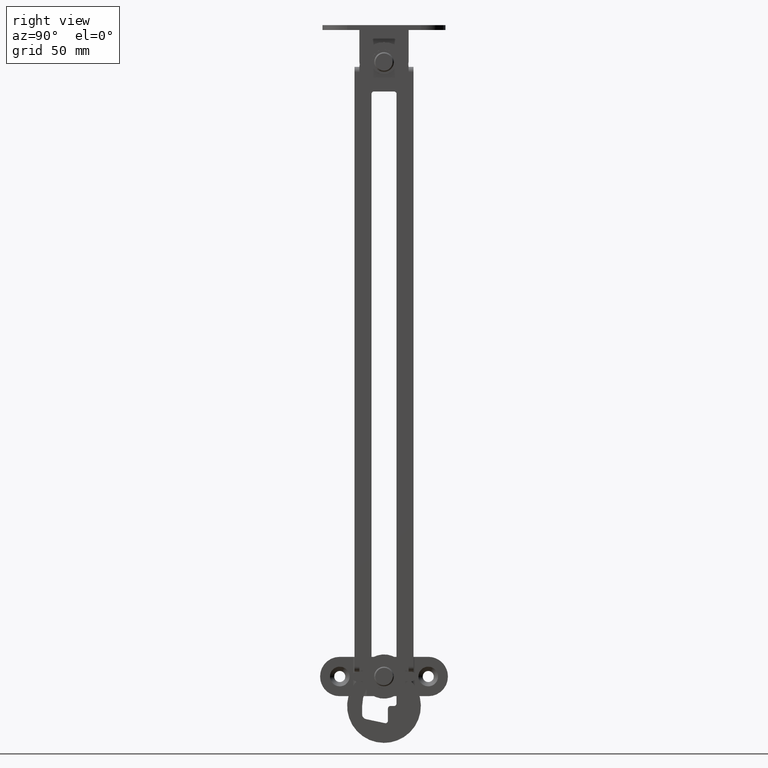
[diagram: clean part render]
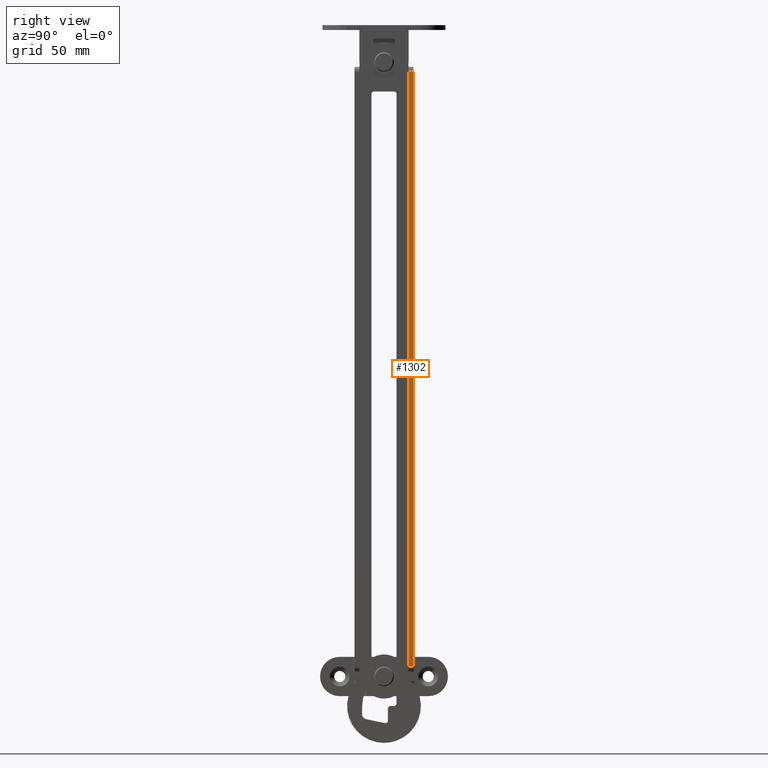
[diagram: same view with one face highlighted and labeled with its STEP entity id]
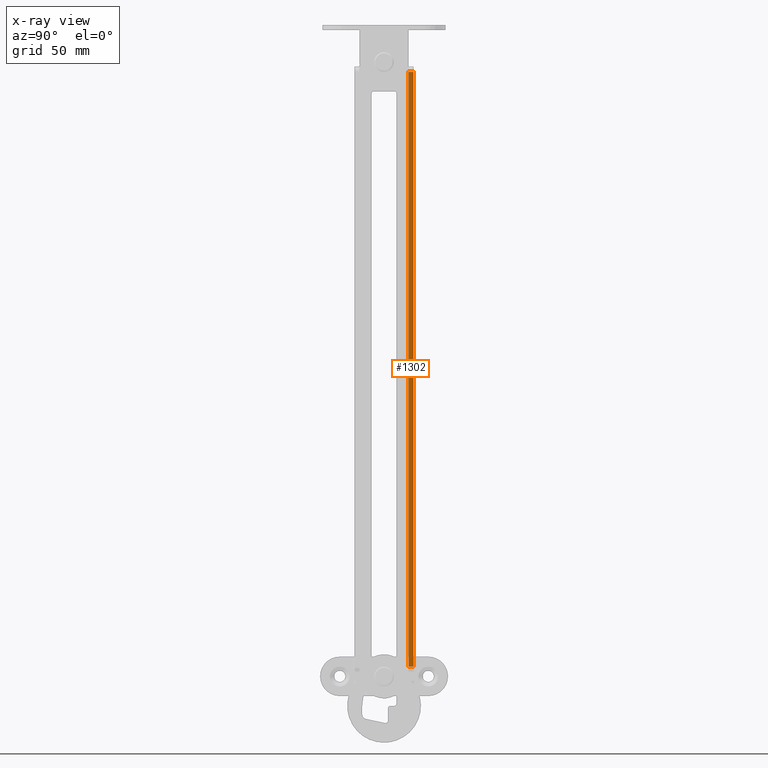
[diagram: x-ray of the same camera — body ghosted, the highlighted face saturated]
A machine part, right view. The second image highlights one B-rep face of the part: STEP entity #1302.
The next image is the same camera in x-ray: the body ghosted, the highlighted face saturated — about 0% of this face is hidden behind the body in this view.
In plain terms, the highlighted face is a freeform B-spline surface patch.
Its self-contained STEP definition (entity closure, byte-faithful):
#517=CARTESIAN_POINT('',(11.000000000000121,10.0,-246.000014999999990));
#518=VERTEX_POINT('',#517);
#538=CARTESIAN_POINT('',(11.000000000000121,11.999999999999799,-246.000014999999990));
#539=VERTEX_POINT('',#538);
#550=CARTESIAN_POINT('',(11.000000000000121,11.999999999999799,-246.000014999999990));
#551=CARTESIAN_POINT('',(11.000000000000121,10.0,-246.000014999999990));
#552=QUASI_UNIFORM_CURVE('',1,(#550,#551),.UNSPECIFIED.,.F.,.U.);
#553=EDGE_CURVE('',#539,#518,#552,.T.);
#614=CARTESIAN_POINT('',(11.000000000000121,11.999999999999821,-4.0));
#615=VERTEX_POINT('',#614);
#635=CARTESIAN_POINT('',(11.000000000000121,10.0,-4.0));
#636=VERTEX_POINT('',#635);
#647=CARTESIAN_POINT('',(11.000000000000121,10.0,-4.0));
#648=CARTESIAN_POINT('',(11.000000000000121,11.999999999999821,-4.0));
#649=QUASI_UNIFORM_CURVE('',1,(#647,#648),.UNSPECIFIED.,.F.,.U.);
#650=EDGE_CURVE('',#636,#615,#649,.T.);
#1283=CARTESIAN_POINT('',(11.0,12.099899996123421,8.087900280207000));
#1284=CARTESIAN_POINT('',(11.0,9.900099950232217,8.087900280207000));
#1285=CARTESIAN_POINT('',(11.0,12.099899996123421,-258.087921771153280));
#1286=CARTESIAN_POINT('',(11.0,9.900099950232217,-258.087921771153280));
#1287=B_SPLINE_SURFACE_WITH_KNOTS('',1,1,((#1283,#1285),(#1284,#1286)),.UNSPECIFIED.,.F.,.F.,.U.,(2,2),(2,2),(0.0,2.199800045891205),(0.0,266.175822051360290),.UNSPECIFIED.);
#1288=CARTESIAN_POINT('',(11.000000000000121,10.0,-4.0));
#1289=CARTESIAN_POINT('',(11.000000000000121,10.0,-246.000014999999990));
#1290=QUASI_UNIFORM_CURVE('',1,(#1288,#1289),.UNSPECIFIED.,.F.,.U.);
#1291=EDGE_CURVE('',#636,#518,#1290,.T.);
#1292=ORIENTED_EDGE('',*,*,#1291,.T.);
#1293=ORIENTED_EDGE('',*,*,#553,.F.);
#1294=CARTESIAN_POINT('',(11.000000000000121,11.999999999999799,-246.000014999999990));
#1295=CARTESIAN_POINT('',(11.000000000000121,11.999999999999821,-4.0));
#1296=QUASI_UNIFORM_CURVE('',1,(#1294,#1295),.UNSPECIFIED.,.F.,.U.);
#1297=EDGE_CURVE('',#539,#615,#1296,.T.);
#1298=ORIENTED_EDGE('',*,*,#1297,.T.);
#1299=ORIENTED_EDGE('',*,*,#650,.F.);
#1300=EDGE_LOOP('',(#1292,#1293,#1298,#1299));
#1301=FACE_OUTER_BOUND('',#1300,.T.);
#1302=ADVANCED_FACE('',(#1301),#1287,.T.);